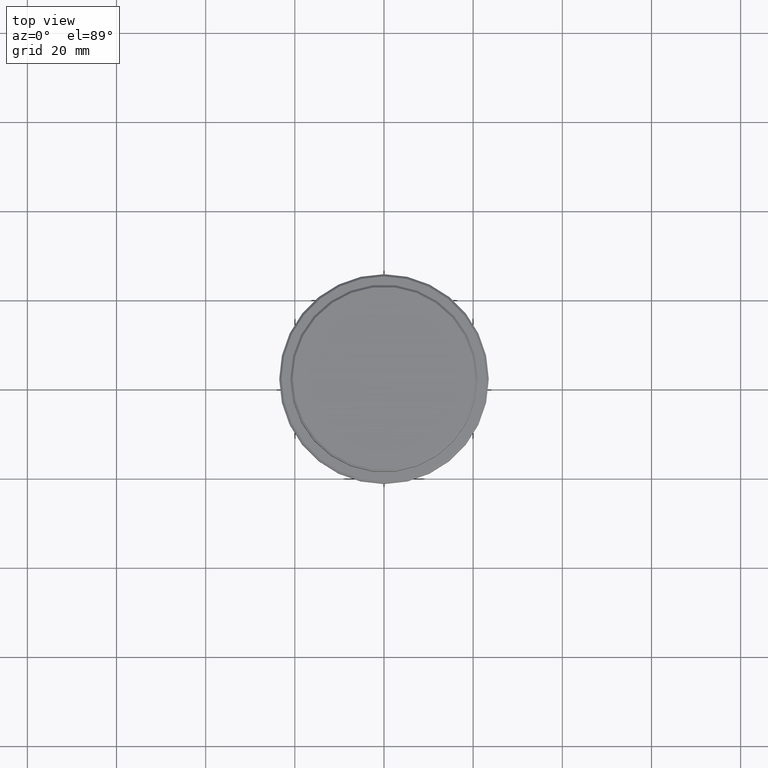
[diagram: clean part render]
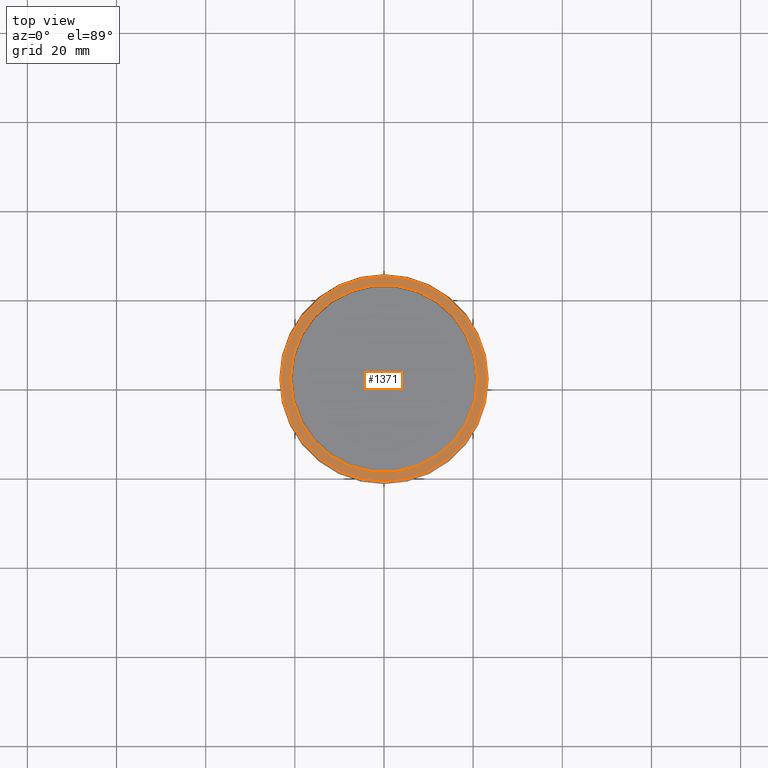
[diagram: same view with one face highlighted and labeled with its STEP entity id]
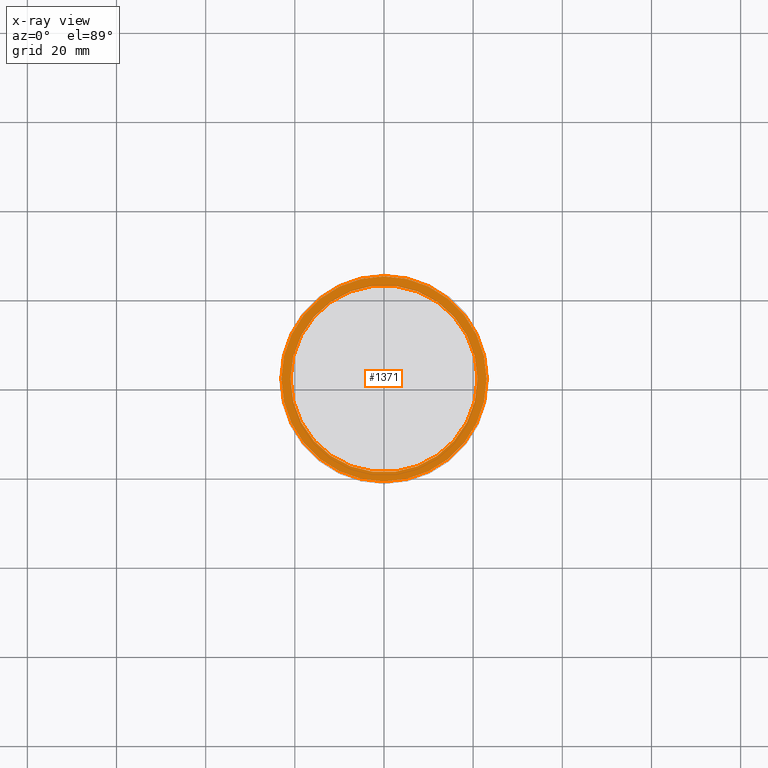
[diagram: x-ray of the same camera — body ghosted, the highlighted face saturated]
A machine part, top view. The second image highlights one B-rep face of the part: STEP entity #1371.
The next image is the same camera in x-ray: the body ghosted, the highlighted face saturated — about 0% of this face is hidden behind the body in this view.
In plain terms, the highlighted planar face has unit normal (0, -0, 1).
Its self-contained STEP definition (entity closure, byte-faithful):
#4 = EDGE_LOOP ( 'NONE', ( #1273, #964 ) ) ;
#7 = DIRECTION ( 'NONE',  ( 1.000000000000000000, 0.000000000000000000, 0.000000000000000000 ) ) ;
#10 = CIRCLE ( 'NONE', #519, 22.99999999999995381 ) ;
#14 = CARTESIAN_POINT ( 'NONE',  ( 0.000000000000000000, 20.49999999999999645, -8.999999999999987566 ) ) ;
#15 = VERTEX_POINT ( 'NONE', #1194 ) ;
#29 = EDGE_CURVE ( 'NONE', #15, #499, #1235, .T. ) ;
#31 = CIRCLE ( 'NONE', #1050, 20.99999999999999289 ) ;
#105 = DIRECTION ( 'NONE',  ( 1.000000000000000000, 0.000000000000000000, 0.000000000000000000 ) ) ;
#129 = FACE_BOUND ( 'NONE', #4, .T. ) ;
#152 = AXIS2_PLACEMENT_3D ( 'NONE', #811, #816, #381 ) ;
#286 = CARTESIAN_POINT ( 'NONE',  ( -22.99999999999995381, 0.000000000000000000, -8.999999999999987566 ) ) ;
#289 = EDGE_CURVE ( 'NONE', #546, #1311, #783, .T. ) ;
#322 = CARTESIAN_POINT ( 'NONE',  ( 20.99999999999999289, 0.000000000000000000, -8.999999999999987566 ) ) ;
#381 = DIRECTION ( 'NONE',  ( 1.000000000000000000, 0.000000000000000000, 0.000000000000000000 ) ) ;
#413 = DIRECTION ( 'NONE',  ( 0.000000000000000000, 0.000000000000000000, -1.000000000000000000 ) ) ;
#424 = AXIS2_PLACEMENT_3D ( 'NONE', #14, #996, #7 ) ;
#443 = EDGE_LOOP ( 'NONE', ( #917, #1287 ) ) ;
#499 = VERTEX_POINT ( 'NONE', #322 ) ;
#519 = AXIS2_PLACEMENT_3D ( 'NONE', #535, #1410, #876 ) ;
#535 = CARTESIAN_POINT ( 'NONE',  ( 0.000000000000000000, 0.000000000000000000, -8.999999999999987566 ) ) ;
#546 = VERTEX_POINT ( 'NONE', #1312 ) ;
#551 = CARTESIAN_POINT ( 'NONE',  ( 0.000000000000000000, 0.000000000000000000, -8.999999999999987566 ) ) ;
#750 = FACE_OUTER_BOUND ( 'NONE', #443, .T. ) ;
#782 = DIRECTION ( 'NONE',  ( 0.000000000000000000, 0.000000000000000000, -1.000000000000000000 ) ) ;
#783 = CIRCLE ( 'NONE', #152, 22.99999999999995381 ) ;
#811 = CARTESIAN_POINT ( 'NONE',  ( 0.000000000000000000, 0.000000000000000000, -8.999999999999987566 ) ) ;
#816 = DIRECTION ( 'NONE',  ( -0.000000000000000000, -0.000000000000000000, 1.000000000000000000 ) ) ;
#876 = DIRECTION ( 'NONE',  ( 1.000000000000000000, 0.000000000000000000, 0.000000000000000000 ) ) ;
#878 = CARTESIAN_POINT ( 'NONE',  ( 0.000000000000000000, 0.000000000000000000, -8.999999999999987566 ) ) ;
#917 = ORIENTED_EDGE ( 'NONE', *, *, #1169, .T. ) ;
#964 = ORIENTED_EDGE ( 'NONE', *, *, #29, .T. ) ;
#996 = DIRECTION ( 'NONE',  ( 0.000000000000000000, -0.000000000000000000, 1.000000000000000000 ) ) ;
#1050 = AXIS2_PLACEMENT_3D ( 'NONE', #551, #782, #105 ) ;
#1061 = EDGE_CURVE ( 'NONE', #499, #15, #31, .T. ) ;
#1121 = PLANE ( 'NONE',  #424 ) ;
#1169 = EDGE_CURVE ( 'NONE', #1311, #546, #10, .T. ) ;
#1191 = AXIS2_PLACEMENT_3D ( 'NONE', #878, #413, #1308 ) ;
#1194 = CARTESIAN_POINT ( 'NONE',  ( -20.99999999999999289, 2.571758278209440872E-15, -8.999999999999987566 ) ) ;
#1235 = CIRCLE ( 'NONE', #1191, 20.99999999999999289 ) ;
#1273 = ORIENTED_EDGE ( 'NONE', *, *, #1061, .T. ) ;
#1287 = ORIENTED_EDGE ( 'NONE', *, *, #289, .T. ) ;
#1308 = DIRECTION ( 'NONE',  ( 1.000000000000000000, 0.000000000000000000, 0.000000000000000000 ) ) ;
#1311 = VERTEX_POINT ( 'NONE', #286 ) ;
#1312 = CARTESIAN_POINT ( 'NONE',  ( 22.99999999999995381, 2.847303808017593772E-15, -8.999999999999987566 ) ) ;
#1371 = ADVANCED_FACE ( 'NONE', ( #750, #129 ), #1121, .T. ) ;
#1410 = DIRECTION ( 'NONE',  ( -0.000000000000000000, -0.000000000000000000, 1.000000000000000000 ) ) ;